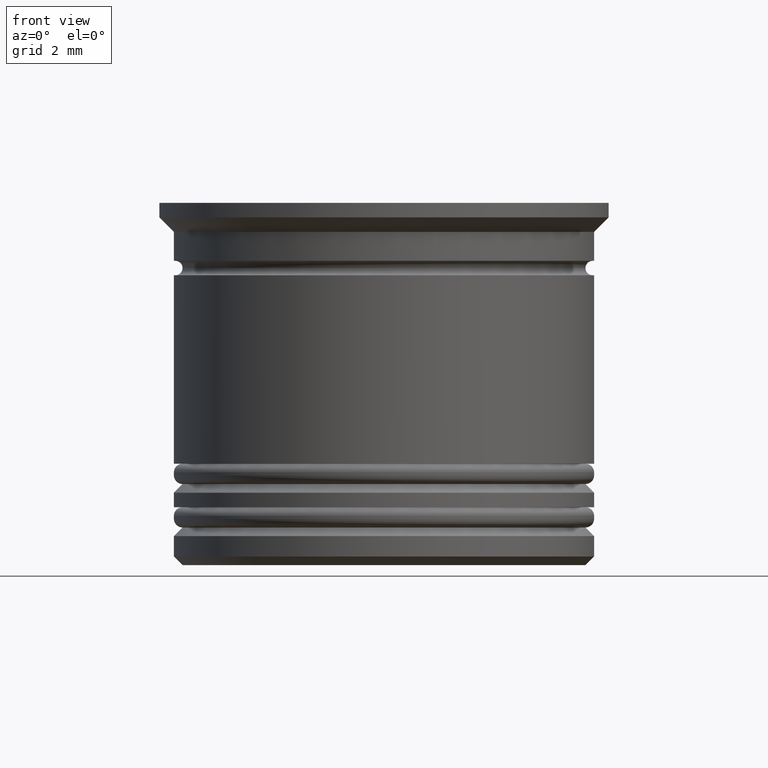
[diagram: clean part render]
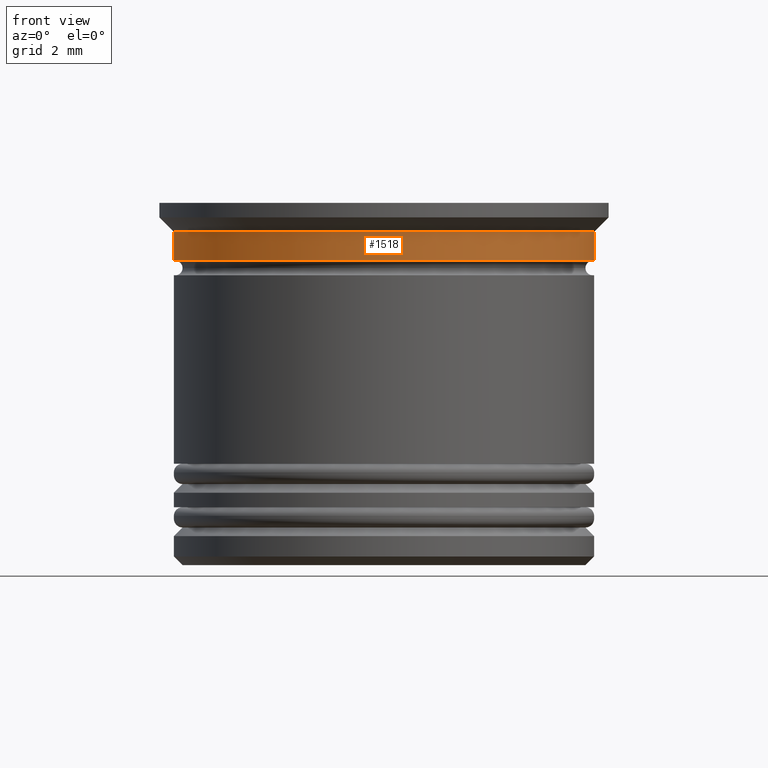
[diagram: same view with one face highlighted and labeled with its STEP entity id]
A machine part, front view. The second image highlights one B-rep face of the part: STEP entity #1518.
In plain terms, the highlighted cylindrical surface (partial cylindrical patch) has radius 7.25 mm, axis along (-0, -0, 1).
Its self-contained STEP definition (entity closure, byte-faithful):
#11 = LINE ( 'NONE', #1700, #1069 ) ;
#73 = ORIENTED_EDGE ( 'NONE', *, *, #1313, .T. ) ;
#96 = CARTESIAN_POINT ( 'NONE',  ( -7.249999999999998224, 8.878689293818308102E-16, 0.000000000000000000 ) ) ;
#281 = AXIS2_PLACEMENT_3D ( 'NONE', #1652, #578, #1511 ) ;
#368 = CARTESIAN_POINT ( 'NONE',  ( 0.000000000000000000, 0.000000000000000000, -2.000000000000000000 ) ) ;
#426 = FACE_OUTER_BOUND ( 'NONE', #1544, .T. ) ;
#453 = CARTESIAN_POINT ( 'NONE',  ( -7.250000000000000000, 8.878689293818310074E-16, -2.000000000000000000 ) ) ;
#555 = VERTEX_POINT ( 'NONE', #1701 ) ;
#578 = DIRECTION ( 'NONE',  ( -0.000000000000000000, -0.000000000000000000, 1.000000000000000000 ) ) ;
#598 = CIRCLE ( 'NONE', #1446, 7.249999999999997335 ) ;
#703 = DIRECTION ( 'NONE',  ( -0.000000000000000000, -0.000000000000000000, 1.000000000000000000 ) ) ;
#770 = VERTEX_POINT ( 'NONE', #1678 ) ;
#774 = ORIENTED_EDGE ( 'NONE', *, *, #1672, .F. ) ;
#854 = CARTESIAN_POINT ( 'NONE',  ( 0.000000000000000000, 0.000000000000000000, -0.9999999999999995559 ) ) ;
#903 = EDGE_CURVE ( 'NONE', #770, #1711, #11, .T. ) ;
#932 = DIRECTION ( 'NONE',  ( -0.000000000000000000, -0.000000000000000000, 1.000000000000000000 ) ) ;
#969 = LINE ( 'NONE', #96, #1308 ) ;
#1036 = CYLINDRICAL_SURFACE ( 'NONE', #281, 7.249999999999998224 ) ;
#1042 = ORIENTED_EDGE ( 'NONE', *, *, #903, .T. ) ;
#1069 = VECTOR ( 'NONE', #932, 1000.000000000000000 ) ;
#1076 = AXIS2_PLACEMENT_3D ( 'NONE', #368, #1130, #1426 ) ;
#1098 = EDGE_CURVE ( 'NONE', #1955, #555, #969, .T. ) ;
#1130 = DIRECTION ( 'NONE',  ( -0.000000000000000000, -0.000000000000000000, 1.000000000000000000 ) ) ;
#1138 = DIRECTION ( 'NONE',  ( -0.000000000000000000, -0.000000000000000000, 1.000000000000000000 ) ) ;
#1200 = ORIENTED_EDGE ( 'NONE', *, *, #1098, .F. ) ;
#1300 = CARTESIAN_POINT ( 'NONE',  ( 7.249999999999997335, 0.000000000000000000, -0.9999999999999995559 ) ) ;
#1308 = VECTOR ( 'NONE', #703, 1000.000000000000000 ) ;
#1313 = EDGE_CURVE ( 'NONE', #1955, #770, #1479, .T. ) ;
#1426 = DIRECTION ( 'NONE',  ( 1.000000000000000000, 0.000000000000000000, 0.000000000000000000 ) ) ;
#1435 = DIRECTION ( 'NONE',  ( 1.000000000000000000, 0.000000000000000000, 0.000000000000000000 ) ) ;
#1446 = AXIS2_PLACEMENT_3D ( 'NONE', #854, #1138, #1435 ) ;
#1479 = CIRCLE ( 'NONE', #1076, 7.249999999999999112 ) ;
#1511 = DIRECTION ( 'NONE',  ( 1.000000000000000000, 0.000000000000000000, 0.000000000000000000 ) ) ;
#1518 = ADVANCED_FACE ( 'NONE', ( #426 ), #1036, .T. ) ;
#1544 = EDGE_LOOP ( 'NONE', ( #1200, #73, #1042, #774 ) ) ;
#1652 = CARTESIAN_POINT ( 'NONE',  ( 0.000000000000000000, 0.000000000000000000, 0.000000000000000000 ) ) ;
#1672 = EDGE_CURVE ( 'NONE', #555, #1711, #598, .T. ) ;
#1678 = CARTESIAN_POINT ( 'NONE',  ( 7.249999999999999112, 0.000000000000000000, -2.000000000000000000 ) ) ;
#1700 = CARTESIAN_POINT ( 'NONE',  ( 7.249999999999998224, 0.000000000000000000, 0.000000000000000000 ) ) ;
#1701 = CARTESIAN_POINT ( 'NONE',  ( -7.249999999999997335, 8.878689293818308102E-16, -0.9999999999999995559 ) ) ;
#1711 = VERTEX_POINT ( 'NONE', #1300 ) ;
#1955 = VERTEX_POINT ( 'NONE', #453 ) ;